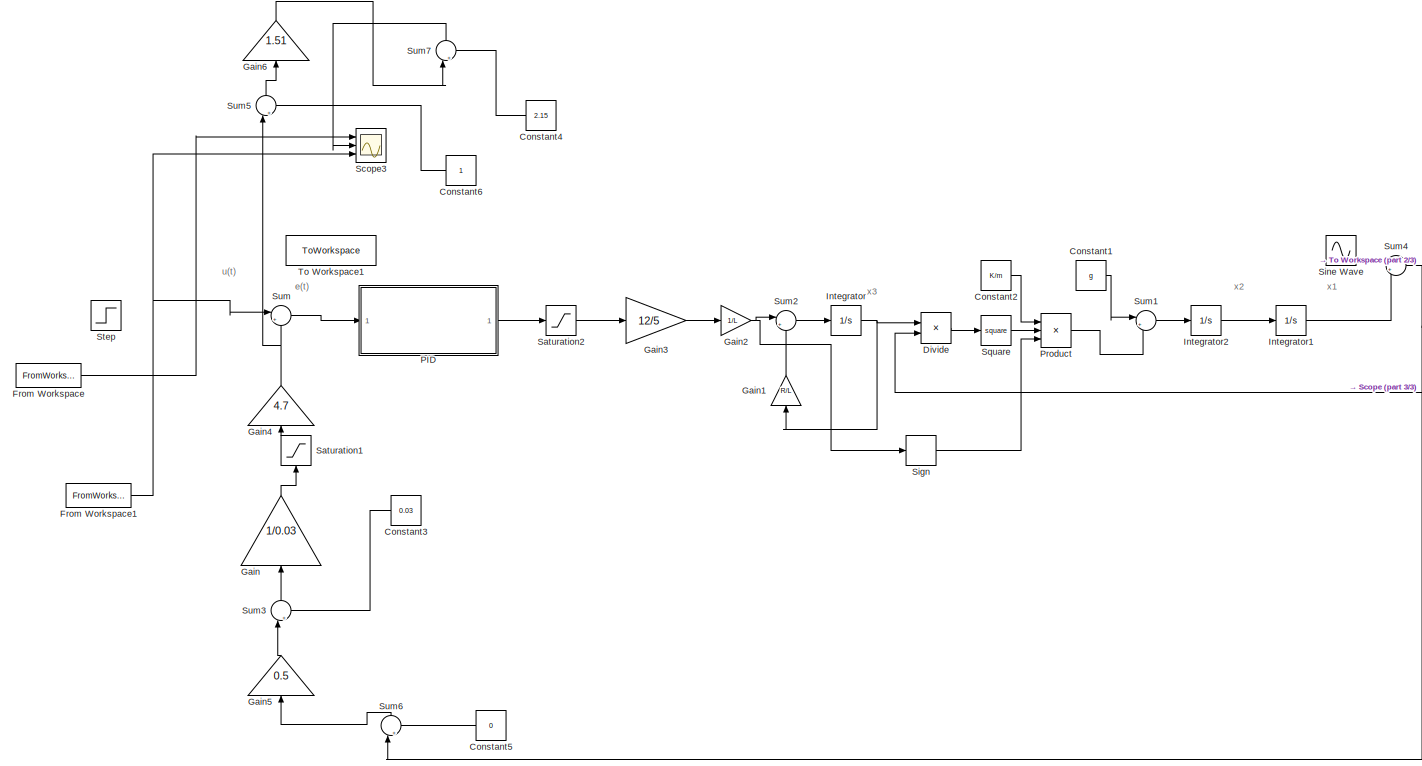
[diagram: root canvas - part 1/3, most of the canvas]
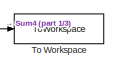
[diagram: root canvas - part 2/3, middle right region]
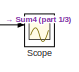
[diagram: root canvas - part 3/3, middle right region]
MODEL mdl_b20a89bf669e
KIND model
CONFIG AbsTol = auto
CONFIG EnableMultiTasking = off
CONFIG FixedStep = 1e-4
CONFIG MaxStep = auto
CONFIG MinStep = auto
CONFIG RelTol = 1e-3
CONFIG SampleTimeConstraint = Unconstrained
CONFIG SolverName = ode3
CONFIG StartTime = 0.0
CONFIG StopTime = 35
BLOCK [Constant] Constant1
  Value = g
BLOCK [Constant] Constant2
  Value = K/m
BLOCK [Constant] Constant3
  NameLocation = top
  Value = 0.03
BLOCK [Constant] Constant4
  NameLocation = top
  Value = 2.15
BLOCK [Constant] Constant5
  NameLocation = top
  Value = 0
BLOCK [Constant] Constant6
  NameLocation = top
BLOCK [Product] Divide
  Inputs = */
  Ports = [2, 1]
BLOCK [FromWorkspace] From Workspace
  VariableName = ref
BLOCK [FromWorkspace] From Workspace1
  VariableName = ref2
BLOCK [Gain] Gain
  Gain = 1/0.03
  NameLocation = right
BLOCK [Gain] Gain1
  Gain = R/L
  NameLocation = right
BLOCK [Gain] Gain2
  Gain = 1/L
BLOCK [Gain] Gain3
  Gain = 12/5
BLOCK [Gain] Gain4
  Gain = 4.7
  NameLocation = right
BLOCK [Gain] Gain5
  Gain = 0.5
  NameLocation = right
BLOCK [Gain] Gain6
  Gain = 1.51
  NameLocation = right
BLOCK [Integrator] Integrator
  Ports = [1, 1]
BLOCK [Integrator] Integrator1
  InitialCondition = -0.015
  Ports = [1, 1]
BLOCK [Integrator] Integrator2
  Ports = [1, 1]
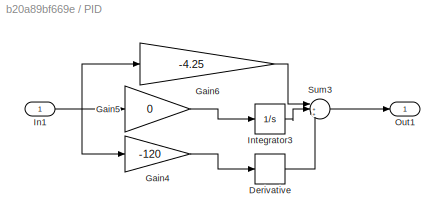
BLOCK [SubSystem] PID
  Ports = [1, 1]
  RequestExecContextInheritance = off
BLOCK [Derivative] PID/Derivative
BLOCK [Gain] PID/Gain4
  Gain = -120
BLOCK [Gain] PID/Gain5
  Gain = 0
BLOCK [Gain] PID/Gain6
  Gain = -4.25
BLOCK [Inport] PID/In1
BLOCK [Integrator] PID/Integrator3
  Ports = [1, 1]
BLOCK [Outport] PID/Out1
BLOCK [Sum] PID/Sum3
  Inputs = |+++
  Ports = [3, 1]
BLOCK [Product] Product
  Inputs = 3
  Ports = [3, 1]
BLOCK [Saturate] Saturation1
  LowerLimit = 0
  NameLocation = right
  UpperLimit = 1
BLOCK [Saturate] Saturation2
  LowerLimit = -5
  UpperLimit = 5
BLOCK [Scope] Scope
  Floating = off
  NumInputPorts = 2
  Ports = [2]
  ScopeSpecificationString = Simulink.scopes.TimeScopeBlockCfg('CurrentConfiguration', extmgr.ConfigurationSet(extmgr.Configuration('Core','General UI',true,'FigureColor',[1 1 1]),extmgr.Configuration('Core','Source UI',true),extmgr.Configuration('Sources','WiredSimulink',true),extmgr.Configuration('Visuals','Time Domain',true,'SerializedDisplays',{struct('MinYLimReal','-0.03954','MaxYLimReal','0.01082','YLabelReal','','MinYL...<+1571ch>
BLOCK [Scope] Scope3
  Floating = off
  NumInputPorts = 3
  Ports = [3]
  ScopeSpecificationString = Simulink.scopes.TimeScopeBlockCfg('CurrentConfiguration', extmgr.ConfigurationSet(extmgr.Configuration('Core','General UI',true,'FigureColor',[1 1 1]),extmgr.Configuration('Core','Source UI',true),extmgr.Configuration('Sources','WiredSimulink',true,'DataLoggingVariableName','ScopeData2'),extmgr.Configuration('Visuals','Time Domain',true,'SerializedDisplays',{struct('MinYLimReal','-0.20377','MaxYLi...<+1602ch>
BLOCK [Signum] Sign
BLOCK [Sin] Sine Wave
  Amplitude = -0.005
  Frequency = 200
  Ports = [0, 1]
  SampleTime = 0
BLOCK [Math] Square
  Operator = square
  Ports = [1, 1]
BLOCK [Step] Step
  After = 2.5
  SampleTime = 0
  Time = 0
BLOCK [Sum] Sum
  Inputs = |+-
  Ports = [2, 1]
BLOCK [Sum] Sum1
  Inputs = |+-
  Ports = [2, 1]
BLOCK [Sum] Sum2
  Inputs = |+-
  Ports = [2, 1]
BLOCK [Sum] Sum3
  Inputs = |++
  NameLocation = right
  Ports = [2, 1]
BLOCK [Sum] Sum4
  Inputs = |++
  Ports = [2, 1]
BLOCK [Sum] Sum5
  Inputs = |+-
  NameLocation = right
  Ports = [2, 1]
BLOCK [Sum] Sum6
  Inputs = |+-
  NameLocation = right
  Ports = [2, 1]
BLOCK [Sum] Sum7
  Inputs = |+-
  NameLocation = right
  Ports = [2, 1]
BLOCK [ToWorkspace] To Workspace
  FixptAsFi = on
  MaxDataPoints = inf
  Ports = [1]
  SampleTime = -1
  SaveFormat = Structure With Time
  VariableName = outputdata
BLOCK [ToWorkspace] To Workspace1
  FixptAsFi = on
  MaxDataPoints = inf
  Ports = [1]
  SampleTime = -1
  SaveFormat = Structure With Time
  VariableName = inputdata
ANNOTATION (root): e(t)
ANNOTATION (root): u(t)
ANNOTATION (root): x1
ANNOTATION (root): x2
ANNOTATION (root): x3
LINE Constant1:1 -> Sum1:1
LINE Constant2:1 -> Product:1
LINE Constant3:1 -> Sum3:2
LINE Constant4:1 -> Sum7:2
LINE Constant5:1 -> Sum6:2
LINE Constant6:1 -> Sum5:2
LINE Divide:1 -> Square:1
NET From Workspace1:1 -> Scope3:3, Sum:1
LINE From Workspace:1 -> Scope3:1
LINE Gain1:1 -> Sum2:2
NET Gain2:1 -> Sign:1, Sum2:1
LINE Gain3:1 -> Gain2:1
NET Gain4:1 -> Sum5:1, Sum:2
LINE Gain5:1 -> Sum3:1
LINE Gain6:1 -> Sum7:1
LINE Gain:1 -> Saturation1:1
LINE Integrator1:1 -> Sum4:2
LINE Integrator2:1 -> Integrator1:1
NET Integrator:1 -> Divide:1, Gain1:1
LINE PID/Derivative:1 -> PID/Sum3:3
LINE PID/Gain4:1 -> PID/Derivative:1
LINE PID/Gain5:1 -> PID/Integrator3:1
LINE PID/Gain6:1 -> PID/Sum3:1
NET PID/In1:1 -> PID/Gain4:1, PID/Gain5:1, PID/Gain6:1
LINE PID/Integrator3:1 -> PID/Sum3:2
LINE PID/Sum3:1 -> PID/Out1:1
LINE PID:1 -> Saturation2:1
LINE Product:1 -> Sum1:2
LINE Saturation1:1 -> Gain4:1
LINE Saturation2:1 -> Gain3:1
LINE Sign:1 -> Product:3
LINE Square:1 -> Product:2
LINE Sum1:1 -> Integrator2:1
LINE Sum2:1 -> Integrator:1
LINE Sum3:1 -> Gain:1
NET Sum4:1 -> Divide:2, Scope:1, Sum6:1, To Workspace:1
LINE Sum5:1 -> Gain6:1
LINE Sum6:1 -> Gain5:1
LINE Sum7:1 -> Scope3:2
LINE Sum:1 -> PID:1
note: NET lines group one-source signal fan-out (src -> all destinations, sorted); 1:1 wires keep LINE
